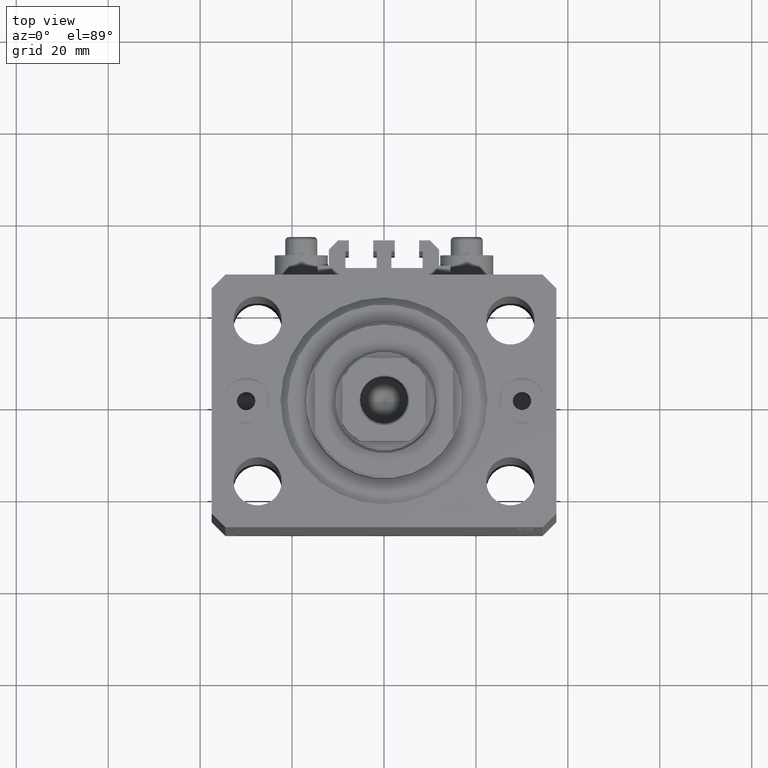
[diagram: clean part render]
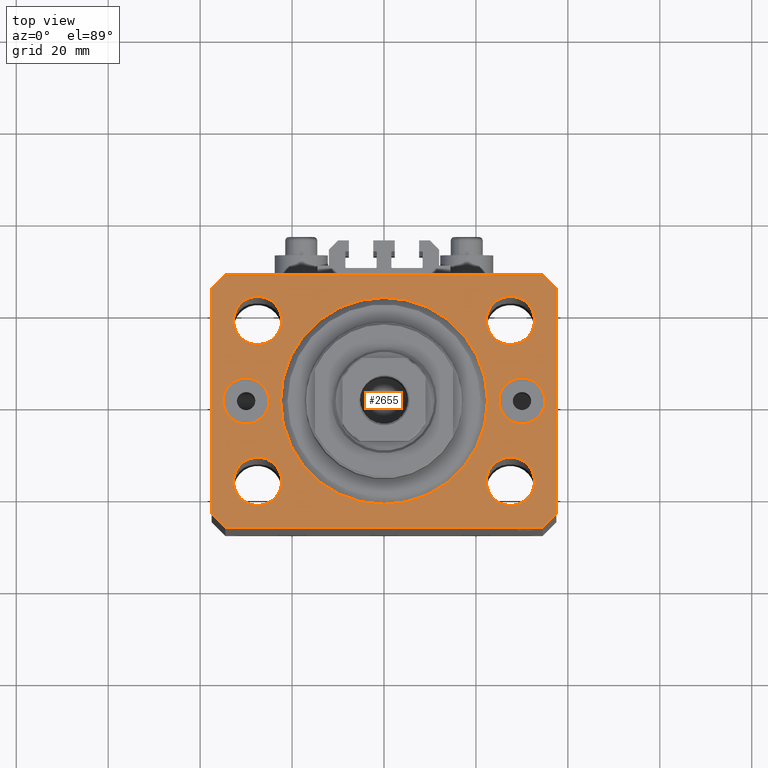
[diagram: same view with one face highlighted and labeled with its STEP entity id]
A machine part, top view. The second image highlights one B-rep face of the part: STEP entity #2655.
In plain terms, the highlighted planar face has unit normal (0, 0, 1).
Its self-contained STEP definition (entity closure, byte-faithful):
#657 = CARTESIAN_POINT ( 'NONE',  ( 32.75000000000000000, 17.49999999999999289, 0.000000000000000000 ) ) ;
#699 = CIRCLE ( 'NONE', #8304, 4.999999999999997335 ) ;
#1066 = DIRECTION ( 'NONE',  ( 0.7071067811865474617, 0.7071067811865474617, 0.000000000000000000 ) ) ;
#1302 = LINE ( 'NONE', #36916, #10119 ) ;
#1347 = CARTESIAN_POINT ( 'NONE',  ( -27.50000000000000000, 17.49999999999999645, 0.000000000000000000 ) ) ;
#1656 = VERTEX_POINT ( 'NONE', #6798 ) ;
#1720 = VERTEX_POINT ( 'NONE', #12825 ) ;
#1764 = FACE_BOUND ( 'NONE', #38886, .T. ) ;
#2319 = EDGE_CURVE ( 'NONE', #14410, #1656, #4698, .T. ) ;
#2485 = AXIS2_PLACEMENT_3D ( 'NONE', #11233, #8127, #40622 ) ;
#2643 = CARTESIAN_POINT ( 'NONE',  ( 27.50000000000000000, 17.49999999999999289, 0.000000000000000000 ) ) ;
#2655 = ADVANCED_FACE ( 'NONE', ( #19676, #37590, #1764, #41411, #8911, #30427, #5583, #23024 ), #12732, .T. ) ;
#2730 = ORIENTED_EDGE ( 'NONE', *, *, #42712, .T. ) ;
#2780 = ORIENTED_EDGE ( 'NONE', *, *, #32880, .F. ) ;
#3440 = VERTEX_POINT ( 'NONE', #25166 ) ;
#3573 = DIRECTION ( 'NONE',  ( 0.000000000000000000, -0.000000000000000000, -1.000000000000000000 ) ) ;
#3816 = ORIENTED_EDGE ( 'NONE', *, *, #29522, .F. ) ;
#4002 = AXIS2_PLACEMENT_3D ( 'NONE', #36288, #3573, #14545 ) ;
#4033 = CIRCLE ( 'NONE', #4002, 4.999999999999997335 ) ;
#4060 = EDGE_LOOP ( 'NONE', ( #36132, #41973 ) ) ;
#4690 = VECTOR ( 'NONE', #37163, 1000.000000000000000 ) ;
#4698 = LINE ( 'NONE', #12553, #5695 ) ;
#4790 = CARTESIAN_POINT ( 'NONE',  ( 34.49999999999999289, -27.49999999999999645, 0.000000000000000000 ) ) ;
#5060 = DIRECTION ( 'NONE',  ( 0.000000000000000000, 0.000000000000000000, 1.000000000000000000 ) ) ;
#5506 = EDGE_CURVE ( 'NONE', #12719, #40217, #39733, .T. ) ;
#5583 = FACE_BOUND ( 'NONE', #16759, .T. ) ;
#5695 = VECTOR ( 'NONE', #30485, 1000.000000000000000 ) ;
#5815 = DIRECTION ( 'NONE',  ( 1.000000000000000000, 0.000000000000000000, 0.000000000000000000 ) ) ;
#5934 = CARTESIAN_POINT ( 'NONE',  ( -32.75000000000000000, 17.49999999999999645, 0.000000000000000000 ) ) ;
#6004 = CARTESIAN_POINT ( 'NONE',  ( 37.50000000000051870, 24.49999999999995381, 0.000000000000000000 ) ) ;
#6342 = VECTOR ( 'NONE', #12881, 1000.000000000000114 ) ;
#6383 = ORIENTED_EDGE ( 'NONE', *, *, #43383, .T. ) ;
#6419 = VECTOR ( 'NONE', #22344, 1000.000000000000000 ) ;
#6798 = CARTESIAN_POINT ( 'NONE',  ( -34.49999999999999289, 27.50000000000000000, 0.000000000000000000 ) ) ;
#6950 = VERTEX_POINT ( 'NONE', #5934 ) ;
#7550 = VERTEX_POINT ( 'NONE', #34673 ) ;
#7625 = CIRCLE ( 'NONE', #40423, 5.250000000000000888 ) ;
#7777 = CIRCLE ( 'NONE', #9313, 5.000000000000000888 ) ;
#8127 = DIRECTION ( 'NONE',  ( 0.000000000000000000, 0.000000000000000000, 1.000000000000000000 ) ) ;
#8226 = CARTESIAN_POINT ( 'NONE',  ( 32.74999999999999289, -17.50000000000000000, 0.000000000000000000 ) ) ;
#8304 = AXIS2_PLACEMENT_3D ( 'NONE', #29308, #11133, #25735 ) ;
#8386 = AXIS2_PLACEMENT_3D ( 'NONE', #1347, #34310, #30736 ) ;
#8418 = EDGE_CURVE ( 'NONE', #3440, #34364, #7777, .T. ) ;
#8437 = CIRCLE ( 'NONE', #12204, 22.50000000000000355 ) ;
#8720 = EDGE_LOOP ( 'NONE', ( #28122, #15713 ) ) ;
#8911 = FACE_BOUND ( 'NONE', #4060, .T. ) ;
#9045 = EDGE_CURVE ( 'NONE', #16727, #32985, #13920, .T. ) ;
#9313 = AXIS2_PLACEMENT_3D ( 'NONE', #39376, #42718, #9994 ) ;
#9626 = LINE ( 'NONE', #24215, #44542 ) ;
#9628 = CARTESIAN_POINT ( 'NONE',  ( -27.49999999999999289, -17.50000000000000000, 0.000000000000000000 ) ) ;
#9647 = VERTEX_POINT ( 'NONE', #19239 ) ;
#9860 = DIRECTION ( 'NONE',  ( 1.000000000000000000, 0.000000000000000000, 0.000000000000000000 ) ) ;
#9994 = DIRECTION ( 'NONE',  ( 1.000000000000000000, 0.000000000000000000, 0.000000000000000000 ) ) ;
#10119 = VECTOR ( 'NONE', #1066, 1000.000000000000114 ) ;
#10123 = ORIENTED_EDGE ( 'NONE', *, *, #31076, .F. ) ;
#10291 = VERTEX_POINT ( 'NONE', #4790 ) ;
#10922 = VECTOR ( 'NONE', #46864, 1000.000000000000000 ) ;
#11133 = DIRECTION ( 'NONE',  ( 0.000000000000000000, -0.000000000000000000, -1.000000000000000000 ) ) ;
#11233 = CARTESIAN_POINT ( 'NONE',  ( -27.50000000000000000, 17.49999999999999645, 0.000000000000000000 ) ) ;
#11329 = EDGE_CURVE ( 'NONE', #6950, #9647, #29012, .T. ) ;
#11490 = AXIS2_PLACEMENT_3D ( 'NONE', #2643, #13381, #31551 ) ;
#12005 = DIRECTION ( 'NONE',  ( 0.000000000000000000, 0.000000000000000000, 1.000000000000000000 ) ) ;
#12204 = AXIS2_PLACEMENT_3D ( 'NONE', #43814, #21368, #25439 ) ;
#12553 = CARTESIAN_POINT ( 'NONE',  ( 34.50000000000056843, 27.50000000000000000, 0.000000000000000000 ) ) ;
#12719 = VERTEX_POINT ( 'NONE', #17526 ) ;
#12732 = PLANE ( 'NONE',  #20979 ) ;
#12825 = CARTESIAN_POINT ( 'NONE',  ( -37.49999999999999289, -24.50000000000000000, 0.000000000000000000 ) ) ;
#12881 = DIRECTION ( 'NONE',  ( -0.7071067811865364705, 0.7071067811865584529, 0.000000000000000000 ) ) ;
#13381 = DIRECTION ( 'NONE',  ( 0.000000000000000000, 0.000000000000000000, 1.000000000000000000 ) ) ;
#13784 = AXIS2_PLACEMENT_3D ( 'NONE', #42119, #12005, #5815 ) ;
#13828 = CARTESIAN_POINT ( 'NONE',  ( 37.50000000000051870, 24.49999999999995381, 0.000000000000000000 ) ) ;
#13862 = DIRECTION ( 'NONE',  ( 1.000000000000000000, 0.000000000000000000, 0.000000000000000000 ) ) ;
#13920 = CIRCLE ( 'NONE', #29167, 5.250000000000000888 ) ;
#14085 = EDGE_CURVE ( 'NONE', #1656, #40917, #29527, .T. ) ;
#14410 = VERTEX_POINT ( 'NONE', #40228 ) ;
#14528 = CARTESIAN_POINT ( 'NONE',  ( 22.50000000000000355, 0.000000000000000000, 0.000000000000000000 ) ) ;
#14545 = DIRECTION ( 'NONE',  ( 1.000000000000000000, 0.000000000000000000, 0.000000000000000000 ) ) ;
#14723 = ORIENTED_EDGE ( 'NONE', *, *, #42883, .F. ) ;
#15661 = EDGE_LOOP ( 'NONE', ( #22879, #10123 ) ) ;
#15713 = ORIENTED_EDGE ( 'NONE', *, *, #11329, .F. ) ;
#16410 = CARTESIAN_POINT ( 'NONE',  ( -37.49999999999999289, -24.50000000000000000, 0.000000000000000000 ) ) ;
#16727 = VERTEX_POINT ( 'NONE', #8226 ) ;
#16759 = EDGE_LOOP ( 'NONE', ( #3816, #43964 ) ) ;
#17189 = VERTEX_POINT ( 'NONE', #657 ) ;
#17229 = DIRECTION ( 'NONE',  ( 0.000000000000000000, 0.000000000000000000, 1.000000000000000000 ) ) ;
#17526 = CARTESIAN_POINT ( 'NONE',  ( -22.24999999999999289, -17.50000000000000000, 0.000000000000000000 ) ) ;
#18062 = LINE ( 'NONE', #32635, #6419 ) ;
#19207 = CARTESIAN_POINT ( 'NONE',  ( 0.000000000000000000, 0.000000000000000000, 0.000000000000000000 ) ) ;
#19239 = CARTESIAN_POINT ( 'NONE',  ( -22.25000000000000000, 17.49999999999999645, 0.000000000000000000 ) ) ;
#19533 = ORIENTED_EDGE ( 'NONE', *, *, #34062, .F. ) ;
#19676 = FACE_OUTER_BOUND ( 'NONE', #32235, .T. ) ;
#20219 = VERTEX_POINT ( 'NONE', #32251 ) ;
#20299 = LINE ( 'NONE', #13828, #6342 ) ;
#20593 = CIRCLE ( 'NONE', #20627, 22.50000000000000355 ) ;
#20627 = AXIS2_PLACEMENT_3D ( 'NONE', #45180, #5060, #45412 ) ;
#20936 = AXIS2_PLACEMENT_3D ( 'NONE', #9628, #31625, #9860 ) ;
#20979 = AXIS2_PLACEMENT_3D ( 'NONE', #19207, #33546, #30907 ) ;
#21368 = DIRECTION ( 'NONE',  ( 0.000000000000000000, 0.000000000000000000, 1.000000000000000000 ) ) ;
#22344 = DIRECTION ( 'NONE',  ( 1.076236605503979380E-14, 1.000000000000000000, 0.000000000000000000 ) ) ;
#22434 = CARTESIAN_POINT ( 'NONE',  ( -24.99999999999999645, 0.000000000000000000, 0.000000000000000000 ) ) ;
#22836 = CIRCLE ( 'NONE', #28917, 5.000000000000000888 ) ;
#22879 = ORIENTED_EDGE ( 'NONE', *, *, #9045, .F. ) ;
#22977 = VERTEX_POINT ( 'NONE', #30532 ) ;
#23024 = FACE_BOUND ( 'NONE', #45360, .T. ) ;
#23077 = CIRCLE ( 'NONE', #2485, 5.250000000000000888 ) ;
#23104 = LINE ( 'NONE', #16410, #45338 ) ;
#24044 = VERTEX_POINT ( 'NONE', #6004 ) ;
#24215 = CARTESIAN_POINT ( 'NONE',  ( -34.49999999999998579, -27.49999999999999645, 0.000000000000000000 ) ) ;
#24806 = CARTESIAN_POINT ( 'NONE',  ( -32.74999999999999289, -17.50000000000000000, 0.000000000000000000 ) ) ;
#25166 = CARTESIAN_POINT ( 'NONE',  ( -34.99999999999999289, 6.123233995736768255E-16, 0.000000000000000000 ) ) ;
#25419 = DIRECTION ( 'NONE',  ( 0.000000000000000000, 0.000000000000000000, 1.000000000000000000 ) ) ;
#25439 = DIRECTION ( 'NONE',  ( 1.000000000000000000, 0.000000000000000000, 0.000000000000000000 ) ) ;
#25451 = CIRCLE ( 'NONE', #33040, 5.250000000000000888 ) ;
#25735 = DIRECTION ( 'NONE',  ( 1.000000000000000000, 0.000000000000000000, 0.000000000000000000 ) ) ;
#25738 = CARTESIAN_POINT ( 'NONE',  ( -30.00000000000000000, 0.000000000000000000, 0.000000000000000000 ) ) ;
#26687 = VERTEX_POINT ( 'NONE', #41989 ) ;
#26736 = CARTESIAN_POINT ( 'NONE',  ( -37.49999999999999289, 24.50000000000000000, 0.000000000000000000 ) ) ;
#27512 = CARTESIAN_POINT ( 'NONE',  ( 34.99999999999999289, 0.000000000000000000, 0.000000000000000000 ) ) ;
#28122 = ORIENTED_EDGE ( 'NONE', *, *, #36744, .F. ) ;
#28820 = EDGE_CURVE ( 'NONE', #31715, #7550, #699, .T. ) ;
#28917 = AXIS2_PLACEMENT_3D ( 'NONE', #25738, #33136, #40290 ) ;
#29012 = CIRCLE ( 'NONE', #8386, 5.250000000000000888 ) ;
#29167 = AXIS2_PLACEMENT_3D ( 'NONE', #40203, #25419, #36860 ) ;
#29308 = CARTESIAN_POINT ( 'NONE',  ( 30.00000000000000000, 0.000000000000000000, 0.000000000000000000 ) ) ;
#29522 = EDGE_CURVE ( 'NONE', #34364, #3440, #22836, .T. ) ;
#29526 = ORIENTED_EDGE ( 'NONE', *, *, #28820, .T. ) ;
#29527 = LINE ( 'NONE', #40511, #4690 ) ;
#30427 = FACE_BOUND ( 'NONE', #39836, .T. ) ;
#30466 = DIRECTION ( 'NONE',  ( 0.000000000000000000, 0.000000000000000000, 1.000000000000000000 ) ) ;
#30485 = DIRECTION ( 'NONE',  ( -1.000000000000000000, 0.000000000000000000, 0.000000000000000000 ) ) ;
#30532 = CARTESIAN_POINT ( 'NONE',  ( 22.25000000000000000, 17.49999999999999289, 0.000000000000000000 ) ) ;
#30736 = DIRECTION ( 'NONE',  ( 1.000000000000000000, 0.000000000000000000, 0.000000000000000000 ) ) ;
#30907 = DIRECTION ( 'NONE',  ( 1.000000000000000000, 0.000000000000000000, -0.000000000000000000 ) ) ;
#31076 = EDGE_CURVE ( 'NONE', #32985, #16727, #7625, .T. ) ;
#31551 = DIRECTION ( 'NONE',  ( 1.000000000000000000, 0.000000000000000000, 0.000000000000000000 ) ) ;
#31606 = CARTESIAN_POINT ( 'NONE',  ( 22.24999999999999289, -17.50000000000000000, 0.000000000000000000 ) ) ;
#31625 = DIRECTION ( 'NONE',  ( 0.000000000000000000, 0.000000000000000000, 1.000000000000000000 ) ) ;
#31704 = EDGE_CURVE ( 'NONE', #34907, #26687, #20593, .T. ) ;
#31715 = VERTEX_POINT ( 'NONE', #27512 ) ;
#32146 = CIRCLE ( 'NONE', #11490, 5.250000000000000888 ) ;
#32235 = EDGE_LOOP ( 'NONE', ( #33956, #32256, #6383, #32713, #44684, #41582, #45481, #2730 ) ) ;
#32251 = CARTESIAN_POINT ( 'NONE',  ( -34.49999999999998579, -27.49999999999999645, 0.000000000000000000 ) ) ;
#32256 = ORIENTED_EDGE ( 'NONE', *, *, #14085, .T. ) ;
#32635 = CARTESIAN_POINT ( 'NONE',  ( 37.49999999999999289, -24.50000000000000000, 0.000000000000000000 ) ) ;
#32713 = ORIENTED_EDGE ( 'NONE', *, *, #46981, .T. ) ;
#32880 = EDGE_CURVE ( 'NONE', #26687, #34907, #8437, .T. ) ;
#32985 = VERTEX_POINT ( 'NONE', #31606 ) ;
#33040 = AXIS2_PLACEMENT_3D ( 'NONE', #38814, #30466, #41451 ) ;
#33136 = DIRECTION ( 'NONE',  ( 0.000000000000000000, 0.000000000000000000, 1.000000000000000000 ) ) ;
#33546 = DIRECTION ( 'NONE',  ( 0.000000000000000000, 0.000000000000000000, 1.000000000000000000 ) ) ;
#33956 = ORIENTED_EDGE ( 'NONE', *, *, #2319, .T. ) ;
#34062 = EDGE_CURVE ( 'NONE', #17189, #22977, #32146, .T. ) ;
#34310 = DIRECTION ( 'NONE',  ( 0.000000000000000000, 0.000000000000000000, 1.000000000000000000 ) ) ;
#34364 = VERTEX_POINT ( 'NONE', #22434 ) ;
#34673 = CARTESIAN_POINT ( 'NONE',  ( 25.00000000000000000, 6.123233995736762338E-16, 0.000000000000000000 ) ) ;
#34907 = VERTEX_POINT ( 'NONE', #14528 ) ;
#36124 = LINE ( 'NONE', #38759, #10922 ) ;
#36132 = ORIENTED_EDGE ( 'NONE', *, *, #5506, .F. ) ;
#36288 = CARTESIAN_POINT ( 'NONE',  ( 30.00000000000000000, 0.000000000000000000, 0.000000000000000000 ) ) ;
#36744 = EDGE_CURVE ( 'NONE', #9647, #6950, #23077, .T. ) ;
#36860 = DIRECTION ( 'NONE',  ( 1.000000000000000000, 0.000000000000000000, 0.000000000000000000 ) ) ;
#36916 = CARTESIAN_POINT ( 'NONE',  ( 34.49999999999999289, -27.49999999999999645, 0.000000000000000000 ) ) ;
#37056 = EDGE_CURVE ( 'NONE', #7550, #31715, #4033, .T. ) ;
#37163 = DIRECTION ( 'NONE',  ( -0.7071067811865471286, -0.7071067811865479058, 0.000000000000000000 ) ) ;
#37590 = FACE_BOUND ( 'NONE', #8720, .T. ) ;
#37788 = VERTEX_POINT ( 'NONE', #45886 ) ;
#38362 = EDGE_CURVE ( 'NONE', #10291, #37788, #1302, .T. ) ;
#38759 = CARTESIAN_POINT ( 'NONE',  ( -37.49999999999999289, 24.50000000000000000, 0.000000000000000000 ) ) ;
#38769 = DIRECTION ( 'NONE',  ( 1.000000000000000000, 0.000000000000000000, 0.000000000000000000 ) ) ;
#38814 = CARTESIAN_POINT ( 'NONE',  ( 27.50000000000000000, 17.49999999999999289, 0.000000000000000000 ) ) ;
#38886 = EDGE_LOOP ( 'NONE', ( #19533, #14723 ) ) ;
#39376 = CARTESIAN_POINT ( 'NONE',  ( -30.00000000000000000, 0.000000000000000000, 0.000000000000000000 ) ) ;
#39733 = CIRCLE ( 'NONE', #13784, 5.250000000000000888 ) ;
#39836 = EDGE_LOOP ( 'NONE', ( #45954, #2780 ) ) ;
#40203 = CARTESIAN_POINT ( 'NONE',  ( 27.49999999999999289, -17.50000000000000000, 0.000000000000000000 ) ) ;
#40217 = VERTEX_POINT ( 'NONE', #24806 ) ;
#40228 = CARTESIAN_POINT ( 'NONE',  ( 34.50000000000056843, 27.50000000000000000, 0.000000000000000000 ) ) ;
#40290 = DIRECTION ( 'NONE',  ( 1.000000000000000000, 0.000000000000000000, 0.000000000000000000 ) ) ;
#40423 = AXIS2_PLACEMENT_3D ( 'NONE', #46588, #17229, #13862 ) ;
#40511 = CARTESIAN_POINT ( 'NONE',  ( -34.49999999999999289, 27.50000000000000000, 0.000000000000000000 ) ) ;
#40622 = DIRECTION ( 'NONE',  ( 1.000000000000000000, 0.000000000000000000, 0.000000000000000000 ) ) ;
#40917 = VERTEX_POINT ( 'NONE', #26736 ) ;
#41411 = FACE_BOUND ( 'NONE', #15661, .T. ) ;
#41451 = DIRECTION ( 'NONE',  ( 1.000000000000000000, 0.000000000000000000, 0.000000000000000000 ) ) ;
#41517 = CIRCLE ( 'NONE', #20936, 5.250000000000000888 ) ;
#41582 = ORIENTED_EDGE ( 'NONE', *, *, #38362, .T. ) ;
#41720 = DIRECTION ( 'NONE',  ( 0.7071067811865483499, -0.7071067811865466846, 0.000000000000000000 ) ) ;
#41973 = ORIENTED_EDGE ( 'NONE', *, *, #45695, .F. ) ;
#41989 = CARTESIAN_POINT ( 'NONE',  ( -22.50000000000000355, 2.755455298081544383E-15, 0.000000000000000000 ) ) ;
#42119 = CARTESIAN_POINT ( 'NONE',  ( -27.49999999999999289, -17.50000000000000000, 0.000000000000000000 ) ) ;
#42677 = ORIENTED_EDGE ( 'NONE', *, *, #37056, .T. ) ;
#42712 = EDGE_CURVE ( 'NONE', #24044, #14410, #20299, .T. ) ;
#42718 = DIRECTION ( 'NONE',  ( 0.000000000000000000, 0.000000000000000000, 1.000000000000000000 ) ) ;
#42883 = EDGE_CURVE ( 'NONE', #22977, #17189, #25451, .T. ) ;
#43383 = EDGE_CURVE ( 'NONE', #40917, #1720, #36124, .T. ) ;
#43814 = CARTESIAN_POINT ( 'NONE',  ( 0.000000000000000000, 0.000000000000000000, 0.000000000000000000 ) ) ;
#43964 = ORIENTED_EDGE ( 'NONE', *, *, #8418, .F. ) ;
#44542 = VECTOR ( 'NONE', #38769, 1000.000000000000000 ) ;
#44684 = ORIENTED_EDGE ( 'NONE', *, *, #45425, .T. ) ;
#45180 = CARTESIAN_POINT ( 'NONE',  ( 0.000000000000000000, 0.000000000000000000, 0.000000000000000000 ) ) ;
#45338 = VECTOR ( 'NONE', #41720, 1000.000000000000000 ) ;
#45360 = EDGE_LOOP ( 'NONE', ( #29526, #42677 ) ) ;
#45412 = DIRECTION ( 'NONE',  ( 1.000000000000000000, 0.000000000000000000, 0.000000000000000000 ) ) ;
#45425 = EDGE_CURVE ( 'NONE', #20219, #10291, #9626, .T. ) ;
#45481 = ORIENTED_EDGE ( 'NONE', *, *, #47189, .T. ) ;
#45695 = EDGE_CURVE ( 'NONE', #40217, #12719, #41517, .T. ) ;
#45886 = CARTESIAN_POINT ( 'NONE',  ( 37.49999999999999289, -24.50000000000000000, 0.000000000000000000 ) ) ;
#45954 = ORIENTED_EDGE ( 'NONE', *, *, #31704, .F. ) ;
#46588 = CARTESIAN_POINT ( 'NONE',  ( 27.49999999999999289, -17.50000000000000000, 0.000000000000000000 ) ) ;
#46864 = DIRECTION ( 'NONE',  ( 0.000000000000000000, -1.000000000000000000, 0.000000000000000000 ) ) ;
#46981 = EDGE_CURVE ( 'NONE', #1720, #20219, #23104, .T. ) ;
#47189 = EDGE_CURVE ( 'NONE', #37788, #24044, #18062, .T. ) ;